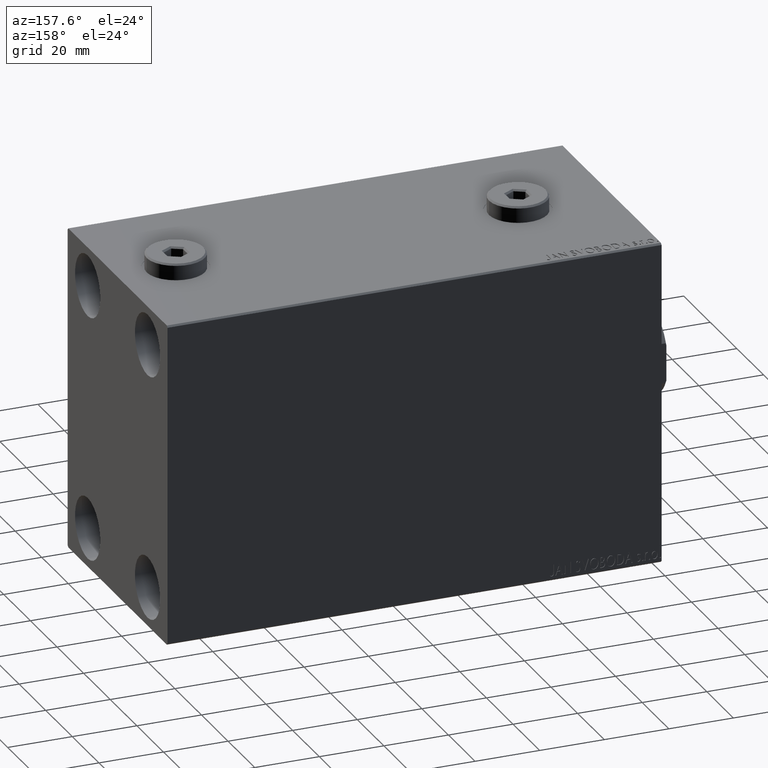
[diagram: clean part render]
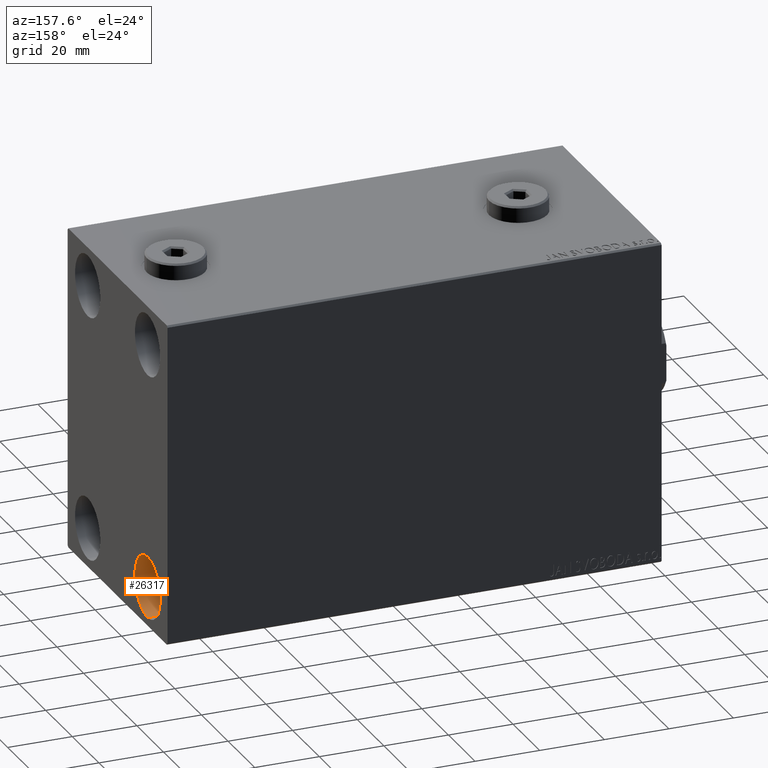
[diagram: same view with one face highlighted and labeled with its STEP entity id]
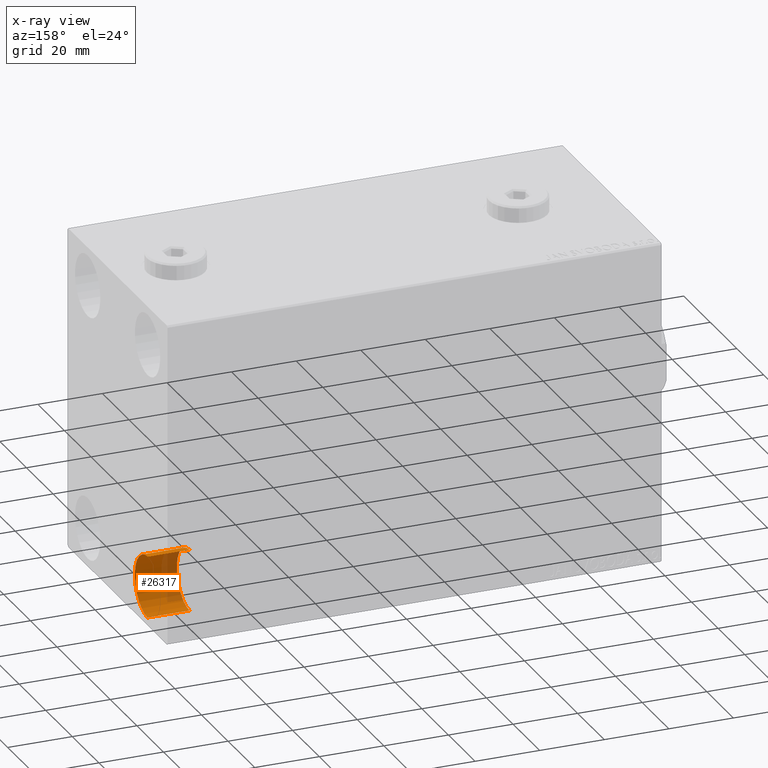
[diagram: x-ray of the same camera — body ghosted, the highlighted face saturated]
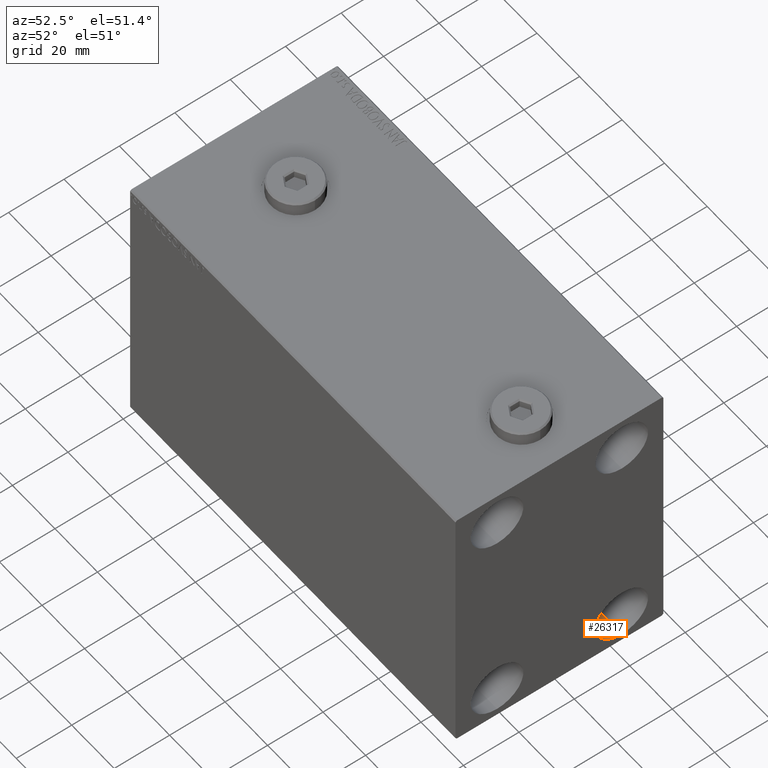
[diagram: same view with one face highlighted and labeled with its STEP entity id]
A machine part, auxiliary view. The second image highlights one B-rep face of the part: STEP entity #26317.
The next image is the same camera in x-ray: the body ghosted, the highlighted face saturated — about 28% of this face is hidden behind the body in this view.
A second angle (auxiliary view) of the same face is appended — the face is thin or edge-on in the first view.
In plain terms, the highlighted cylindrical surface (edge-blend (fillet) strip) has radius 9.5 mm, axis along (1, 0, 0).
Its self-contained STEP definition (entity closure, byte-faithful):
#131 = EDGE_LOOP ( 'NONE', ( #5304, #15460, #38493, #17508 ) ) ;
#1765 = DIRECTION ( 'NONE',  ( 1.000000000000000000, -0.000000000000000000, -0.000000000000000000 ) ) ;
#2825 = CIRCLE ( 'NONE', #34258, 9.500000000000001776 ) ;
#4938 = CARTESIAN_POINT ( 'NONE',  ( 139.9999999999999716, 22.49999999999999645, -37.99999999999999289 ) ) ;
#5164 = DIRECTION ( 'NONE',  ( 0.000000000000000000, 0.000000000000000000, 1.000000000000000000 ) ) ;
#5304 = ORIENTED_EDGE ( 'NONE', *, *, #8953, .T. ) ;
#6125 = CARTESIAN_POINT ( 'NONE',  ( 153.0000000000000000, 22.49999999999999645, -37.99999999999999289 ) ) ;
#6966 = LINE ( 'NONE', #20465, #21628 ) ;
#8219 = CYLINDRICAL_SURFACE ( 'NONE', #42879, 9.500000000000001776 ) ;
#8953 = EDGE_CURVE ( 'NONE', #37363, #18377, #2825, .T. ) ;
#9169 = VECTOR ( 'NONE', #13713, 1000.000000000000000 ) ;
#13713 = DIRECTION ( 'NONE',  ( 1.000000000000000000, -0.000000000000000000, -0.000000000000000000 ) ) ;
#15460 = ORIENTED_EDGE ( 'NONE', *, *, #24676, .T. ) ;
#17508 = ORIENTED_EDGE ( 'NONE', *, *, #23186, .F. ) ;
#18377 = VERTEX_POINT ( 'NONE', #22596 ) ;
#19185 = FACE_OUTER_BOUND ( 'NONE', #131, .T. ) ;
#20465 = CARTESIAN_POINT ( 'NONE',  ( 139.9999999999999716, 22.49999999999999645, -28.49999999999998934 ) ) ;
#21628 = VECTOR ( 'NONE', #34895, 1000.000000000000000 ) ;
#22392 = DIRECTION ( 'NONE',  ( 0.000000000000000000, 0.000000000000000000, -1.000000000000000000 ) ) ;
#22596 = CARTESIAN_POINT ( 'NONE',  ( 139.9999999999999716, 22.49999999999999645, -28.49999999999998934 ) ) ;
#23186 = EDGE_CURVE ( 'NONE', #37363, #30770, #31130, .T. ) ;
#24676 = EDGE_CURVE ( 'NONE', #18377, #27619, #6966, .T. ) ;
#26296 = CARTESIAN_POINT ( 'NONE',  ( 153.0000000000000000, 22.49999999999999645, -28.49999999999998934 ) ) ;
#26317 = ADVANCED_FACE ( 'NONE', ( #19185 ), #8219, .F. ) ;
#27619 = VERTEX_POINT ( 'NONE', #26296 ) ;
#27733 = EDGE_CURVE ( 'NONE', #30770, #27619, #31217, .T. ) ;
#29079 = CARTESIAN_POINT ( 'NONE',  ( 139.9999999999999716, 22.49999999999999645, -47.49999999999999289 ) ) ;
#30770 = VERTEX_POINT ( 'NONE', #31667 ) ;
#30867 = DIRECTION ( 'NONE',  ( 0.000000000000000000, 0.000000000000000000, 1.000000000000000000 ) ) ;
#31130 = LINE ( 'NONE', #41913, #9169 ) ;
#31217 = CIRCLE ( 'NONE', #37049, 9.500000000000001776 ) ;
#31667 = CARTESIAN_POINT ( 'NONE',  ( 153.0000000000000000, 22.49999999999999645, -47.49999999999999289 ) ) ;
#34258 = AXIS2_PLACEMENT_3D ( 'NONE', #4938, #36543, #5164 ) ;
#34295 = DIRECTION ( 'NONE',  ( -1.000000000000000000, -0.000000000000000000, -0.000000000000000000 ) ) ;
#34895 = DIRECTION ( 'NONE',  ( 1.000000000000000000, -0.000000000000000000, -0.000000000000000000 ) ) ;
#36362 = CARTESIAN_POINT ( 'NONE',  ( 139.9999999999999716, 22.49999999999999645, -37.99999999999999289 ) ) ;
#36543 = DIRECTION ( 'NONE',  ( -1.000000000000000000, -0.000000000000000000, -0.000000000000000000 ) ) ;
#37049 = AXIS2_PLACEMENT_3D ( 'NONE', #6125, #34295, #30867 ) ;
#37363 = VERTEX_POINT ( 'NONE', #29079 ) ;
#38493 = ORIENTED_EDGE ( 'NONE', *, *, #27733, .F. ) ;
#41913 = CARTESIAN_POINT ( 'NONE',  ( 139.9999999999999716, 22.49999999999999645, -47.49999999999999289 ) ) ;
#42879 = AXIS2_PLACEMENT_3D ( 'NONE', #36362, #1765, #22392 ) ;